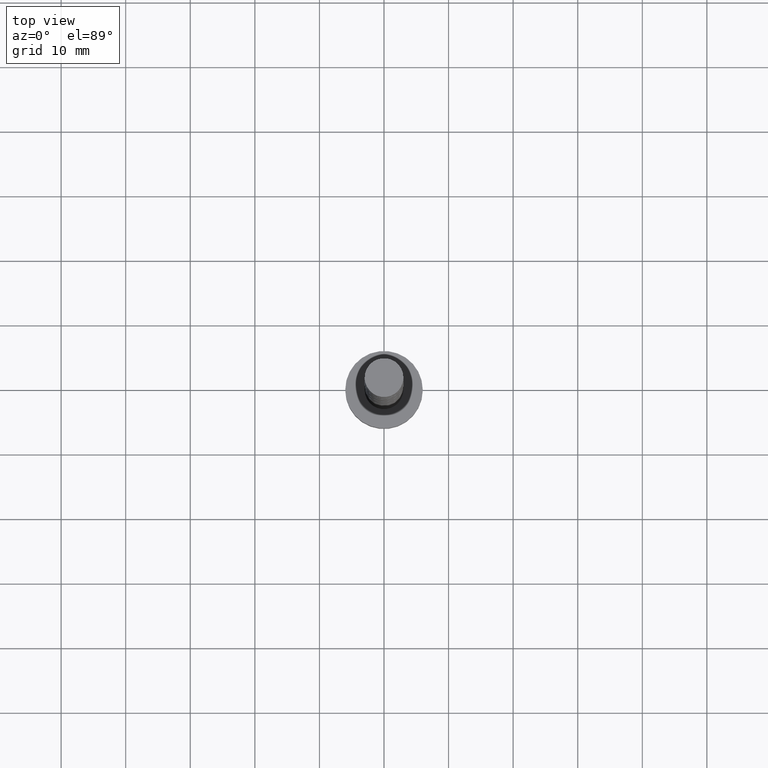
[diagram: clean part render]
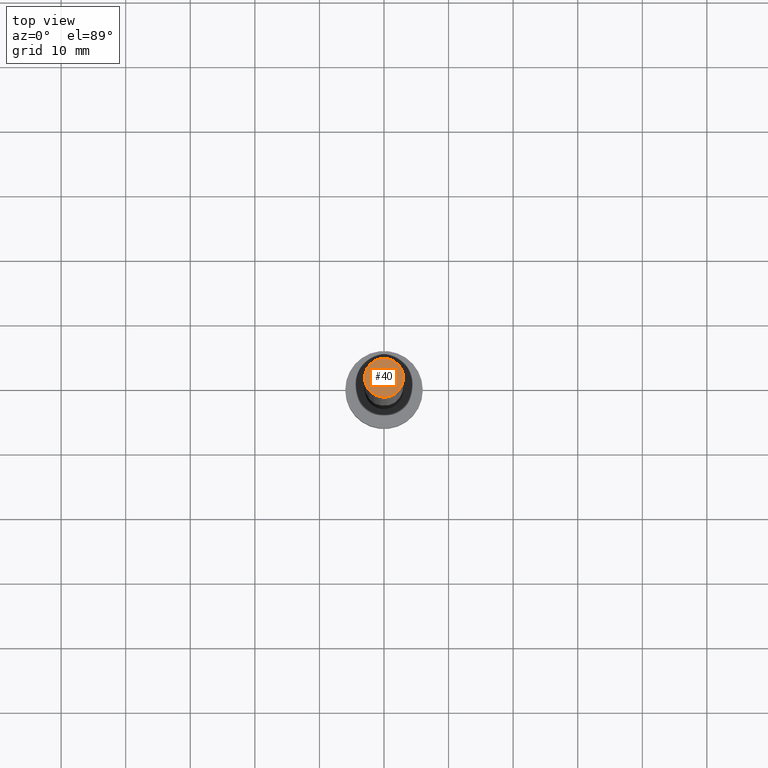
[diagram: same view with one face highlighted and labeled with its STEP entity id]
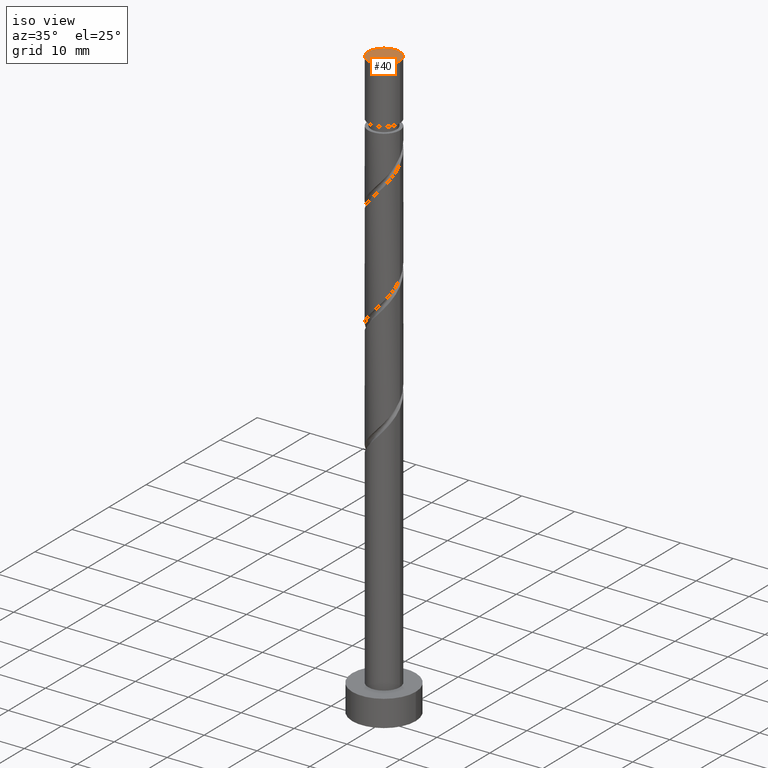
[diagram: same view with one face highlighted and labeled with its STEP entity id]
A machine part, top view. The second image highlights one B-rep face of the part: STEP entity #40.
A second angle (iso view) of the same face is appended — the face is thin or edge-on in the first view.
In plain terms, the highlighted planar face has unit normal (0, 0, 1).
Its self-contained STEP definition (entity closure, byte-faithful):
#40 = ADVANCED_FACE ( 'NONE', ( #1308 ), #562, .T. ) ;
#69 = CARTESIAN_POINT ( 'NONE',  ( 0.000000000000000000, 0.000000000000000000, 112.0000000000000000 ) ) ;
#90 = DIRECTION ( 'NONE',  ( 1.000000000000000000, 0.000000000000000000, -0.000000000000000000 ) ) ;
#133 = ORIENTED_EDGE ( 'NONE', *, *, #566, .T. ) ;
#166 = DIRECTION ( 'NONE',  ( 1.000000000000000000, 0.000000000000000000, 0.000000000000000000 ) ) ;
#253 = CARTESIAN_POINT ( 'NONE',  ( 0.000000000000000000, 0.000000000000000000, 112.0000000000000000 ) ) ;
#262 = AXIS2_PLACEMENT_3D ( 'NONE', #253, #1235, #625 ) ;
#411 = AXIS2_PLACEMENT_3D ( 'NONE', #69, #1064, #90 ) ;
#552 = EDGE_LOOP ( 'NONE', ( #1351, #133 ) ) ;
#562 = PLANE ( 'NONE',  #411 ) ;
#566 = EDGE_CURVE ( 'NONE', #821, #1544, #1077, .T. ) ;
#625 = DIRECTION ( 'NONE',  ( 1.000000000000000000, 0.000000000000000000, 0.000000000000000000 ) ) ;
#821 = VERTEX_POINT ( 'NONE', #1266 ) ;
#923 = CIRCLE ( 'NONE', #1023, 3.000000000000000444 ) ;
#1023 = AXIS2_PLACEMENT_3D ( 'NONE', #1521, #1271, #166 ) ;
#1064 = DIRECTION ( 'NONE',  ( 0.000000000000000000, 0.000000000000000000, 1.000000000000000000 ) ) ;
#1077 = CIRCLE ( 'NONE', #262, 3.000000000000000444 ) ;
#1085 = EDGE_CURVE ( 'NONE', #1544, #821, #923, .T. ) ;
#1235 = DIRECTION ( 'NONE',  ( 0.000000000000000000, 0.000000000000000000, 1.000000000000000000 ) ) ;
#1266 = CARTESIAN_POINT ( 'NONE',  ( 3.000000000000000444, 3.673940397442060361E-16, 112.0000000000000000 ) ) ;
#1271 = DIRECTION ( 'NONE',  ( 0.000000000000000000, 0.000000000000000000, 1.000000000000000000 ) ) ;
#1308 = FACE_OUTER_BOUND ( 'NONE', #552, .T. ) ;
#1351 = ORIENTED_EDGE ( 'NONE', *, *, #1085, .T. ) ;
#1503 = CARTESIAN_POINT ( 'NONE',  ( -3.000000000000000444, 0.000000000000000000, 112.0000000000000000 ) ) ;
#1521 = CARTESIAN_POINT ( 'NONE',  ( 0.000000000000000000, 0.000000000000000000, 112.0000000000000000 ) ) ;
#1544 = VERTEX_POINT ( 'NONE', #1503 ) ;